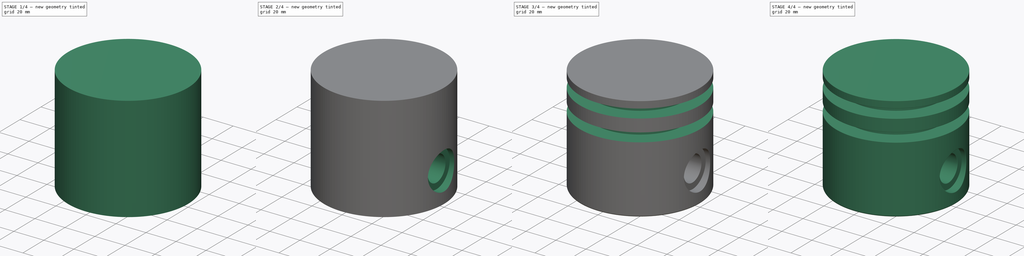
[diagram: build sequence overview — one tinted view per stage of 4, left to right]
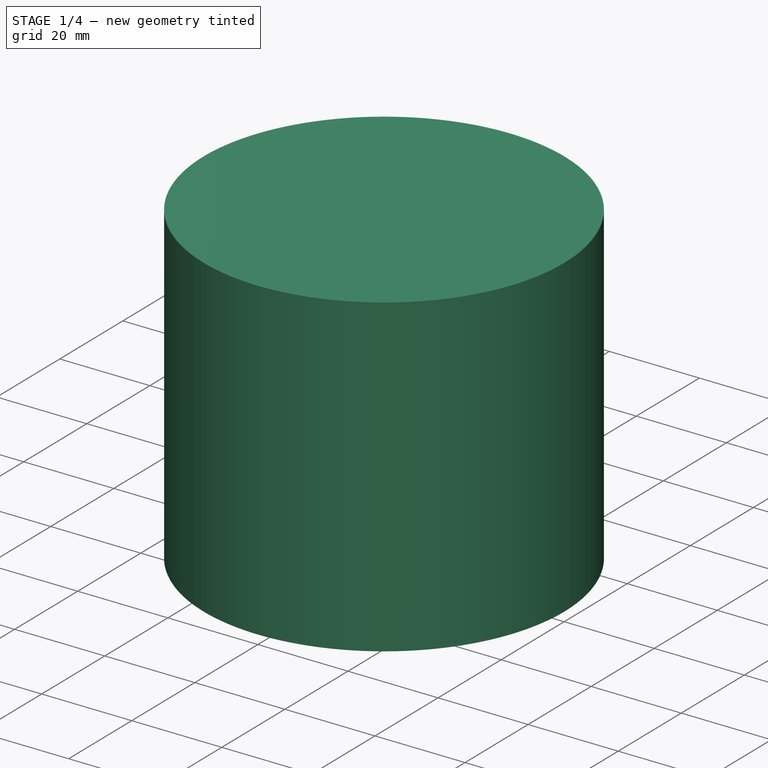
[diagram: stage 1 of 4 — iso view after this stage's code; geometry added in this stage tinted green]
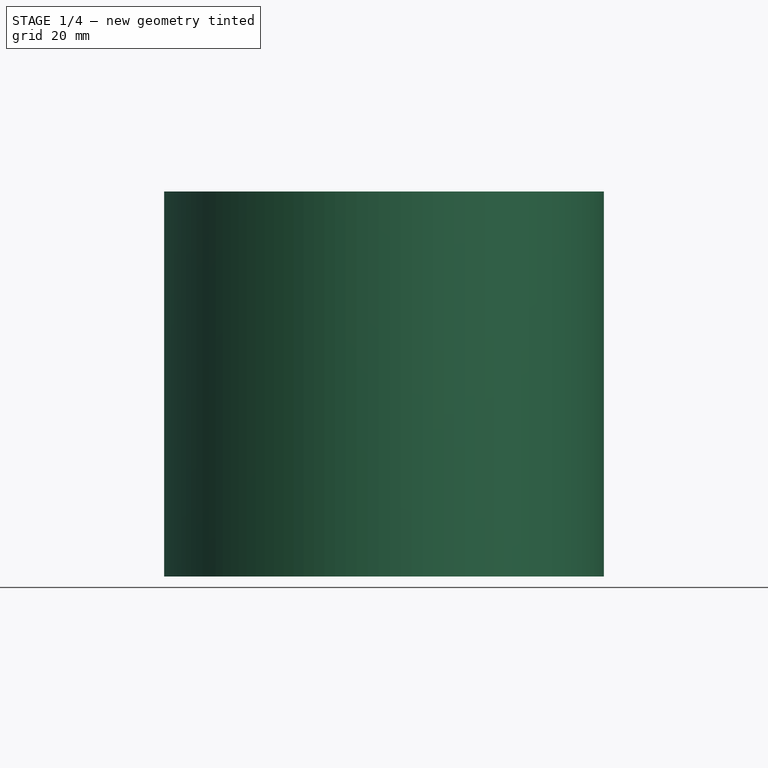
[diagram: stage 1 of 4 — front view after this stage's code; geometry added in this stage tinted green]
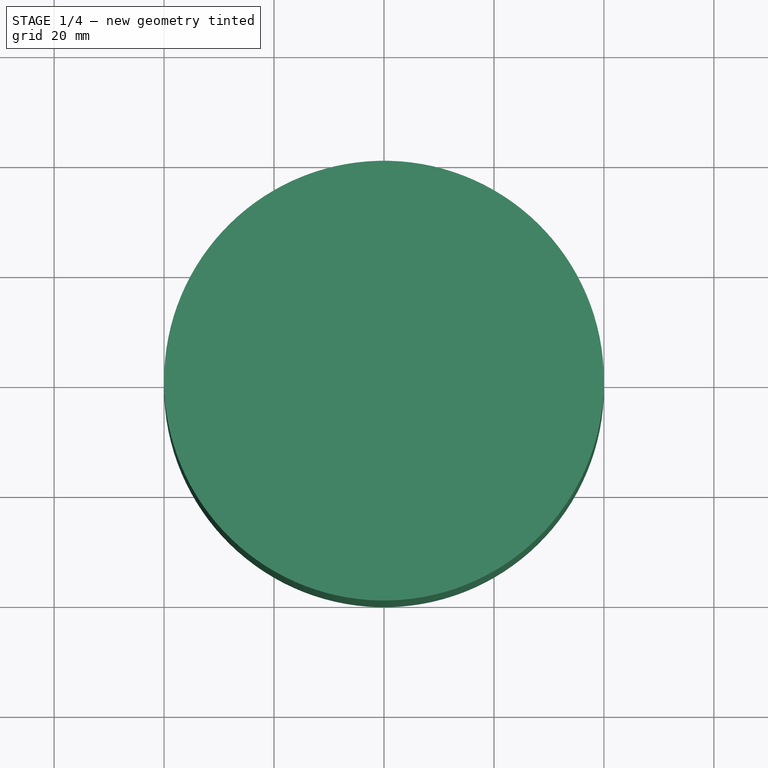
[diagram: stage 1 of 4 — top view after this stage's code; geometry added in this stage tinted green]
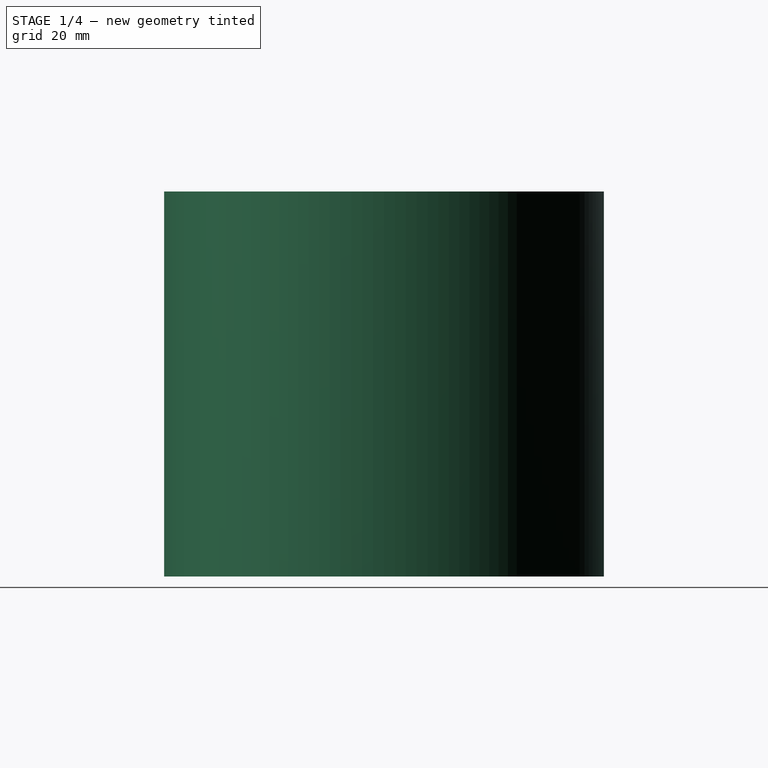
[diagram: stage 1 of 4 — right view after this stage's code; geometry added in this stage tinted green]
FCSTD DOCUMENT  (FreeCAD 0.19R24267 +148 (Git))
Label: Piston
License: All rights reserved
LicenseURL: http://en.wikipedia.org/wiki/All_rights_reserved
objects: Sketcher::SketchObject×6, PartDesign::Fillet×6, PartDesign::Pocket×3, PartDesign::Pad×2, PartDesign::Body×2, PartDesign::Revolution×1, PartDesign::Groove×1
note: 34 computed .brp shape members not serialized (recipe doc carries the construction recipe); baked Part::Feature solids carry a one-line shape summary decoded from their .brp

FEATURE [Sketcher::SketchObject] Sketch
  FullyConstrained = false
  Placement = pos=(0,0,0) rot=(1,0,0;1.5708rad)
  sketch-geometry (14):
    g0: LineSegment StartX=0 StartY=70 StartZ=0 EndX=40 EndY=70 EndZ=0
    g1: LineSegment StartX=40 StartY=70 StartZ=0 EndX=40 EndY=0 EndZ=0
    g2: LineSegment StartX=40 StartY=0 StartZ=0 EndX=25 EndY=0 EndZ=0
    g3: LineSegment StartX=25 StartY=0 StartZ=0 EndX=25 EndY=37.7172 EndZ=0
    g4: LineSegment StartX=25 StartY=37.7172 StartZ=0 EndX=0 EndY=37.7172 EndZ=0
    g5: LineSegment StartX=0 StartY=37.7172 StartZ=0 EndX=0 EndY=45.7172 EndZ=0
    g6: LineSegment StartX=0 StartY=45.7172 StartZ=0 EndX=9.7332 EndY=45.7172 EndZ=0
    g7: LineSegment StartX=9.7332 StartY=45.7172 StartZ=0 EndX=9.7332 EndY=51 EndZ=0
    g8: LineSegment StartX=9.7332 StartY=51 StartZ=0 EndX=0 EndY=51 EndZ=0
    g9: LineSegment StartX=0 StartY=51 StartZ=0 EndX=0 EndY=57 EndZ=0
    g10: LineSegment StartX=0 StartY=57 StartZ=0 EndX=9.7332 EndY=57 EndZ=0
    g11: LineSegment StartX=9.7332 StartY=57 StartZ=0 EndX=9.7332 EndY=62 EndZ=0
    g12: LineSegment StartX=9.7332 StartY=62 StartZ=0 EndX=0 EndY=62 EndZ=0
    g13: LineSegment StartX=0 StartY=62 StartZ=0 EndX=0 EndY=70 EndZ=0
  constraints (37):
    c: PointOnObject(g0,g-2)
    c: Horizontal(g0)
    c: Coincident(g0,g1)
    c: PointOnObject(g1,g-1)
    c: Vertical(g1)
    c: Coincident(g1,g2)
    c: PointOnObject(g2,g-1)
    c: Coincident(g2,g3)
    c: Vertical(g3)
    c: Coincident(g3,g4)
    c: Horizontal(g4)
    c: Coincident(g4,g5)
    c: Vertical(g5)
    c: Coincident(g5,g6)
    c: Coincident(g6,g7)
    c: Vertical(g7)
    c: Coincident(g7,g8)
    c: PointOnObject(g8,g-2)
    c: Coincident(g8,g9)
    c: PointOnObject(g9,g-2)
    c: Coincident(g9,g10)
    c: Coincident(g10,g11)
    c: Coincident(g11,g12)
    c: PointOnObject(g12,g-2)
    c: Coincident(g12,g13)
    c: Coincident(g13,g0)
    c: Vertical(g11)
    c: Horizontal(g10)
    c: Horizontal(g12)
    c: Horizontal(g8)
    c: Horizontal(g6)
    c: Vertical(g10,g7)
    c: Vertical(g8,g5)
    c: Distance(g2) = 15
    c: Distance(g0) = 40
    c: Distance(g5) = 8
    c: Distance(g13) = 8
FEATURE [Sketcher::SketchObject] Sketch001
  FullyConstrained = true
  MapMode = 5
  Placement = pos=(0,0,0) rot=(0.57735,0.57735,0.57735;2.0944rad)
  Support = -> [YZ_Plane]
  sketch-geometry (1):
    g0: Circle CenterX=0 CenterY=20 CenterZ=0 NormalX=0 NormalY=0 NormalZ=1 AngleXU=0 Radius=12.5
  constraints (3):
    c: PointOnObject(g0,g-2)
    c: Diameter(g0) = 25
    c: Distance(g0,g-1) = 20
FEATURE [PartDesign::Revolution] Revolution
  Angle = 360
  Axis = (0,9e-16,1)
  Base = (0,0,0)
  Placement = pos=(0,0,0) rot=(1,0,0;1.5708rad)
  Profile = -> Sketch
  ReferenceAxis = -> Sketch [V_Axis]
  Reversed = true
FEATURE [PartDesign::Body] Body  label="Piston head"
  Group = -> [Sketch,Sketch001,Revolution,Pocket,Sketch002,Pad,Pocket001,Sketch003,Groove,Fillet,Fillet001,Fillet002,Fillet003,Fillet004,Fillet005]
  Origin = -> Origin
  Tip = -> Fillet005
FEATURE [Sketcher::SketchObject] Sketch004
  FullyConstrained = false
  MapMode = 5
  Placement = pos=(0,0,0) rot=(0.57735,0.57735,0.57735;2.0944rad)
  Support = -> [YZ_Plane001]
  sketch-geometry (1):
    g0: Circle CenterX=0 CenterY=19.948 CenterZ=0 NormalX=0 NormalY=0 NormalZ=1 AngleXU=0 Radius=10
  constraints (2):
    c: PointOnObject(g0,g-2)
    c: Diameter(g0) = 20
FEATURE [PartDesign::Pad] Pad001
  Direction = (1,1,1)
  Length = 24
  Length2 = 100
  Midplane = true
  Placement = pos=(0,0,0) rot=(0.57735,0.57735,0.57735;2.0944rad)
  Profile = -> Sketch004
  Type = 0
FEATURE [Sketcher::SketchObject] Sketch005
  FullyConstrained = false
  MapMode = 5
  Placement = pos=(-12,5.3e-15,-4e-15) rot=(0.57735,0.57735,-0.57735;4.18879rad)
  sketch-geometry (1):
    g0: Circle CenterX=0 CenterY=-20.024 CenterZ=0 NormalX=0 NormalY=0 NormalZ=1 AngleXU=0 Radius=5
  constraints (2):
    c: PointOnObject(g0,g-2)
    c: Diameter(g0) = 10
FEATURE [PartDesign::Pocket] Pocket002
  BaseFeature = -> Pad001
  Length = 20
  Length2 = 100
  Midplane = true
  Placement = pos=(0,0,0) rot=(0.57735,0.57735,0.57735;2.0944rad)
  Profile = -> Sketch005
  Type = 0
FEATURE [PartDesign::Body] Body001  label="Connector rod"
  Group = -> [Sketch004,Pad001,Sketch005,Pocket002]
  Origin = -> Origin001
  Tip = -> Pocket002
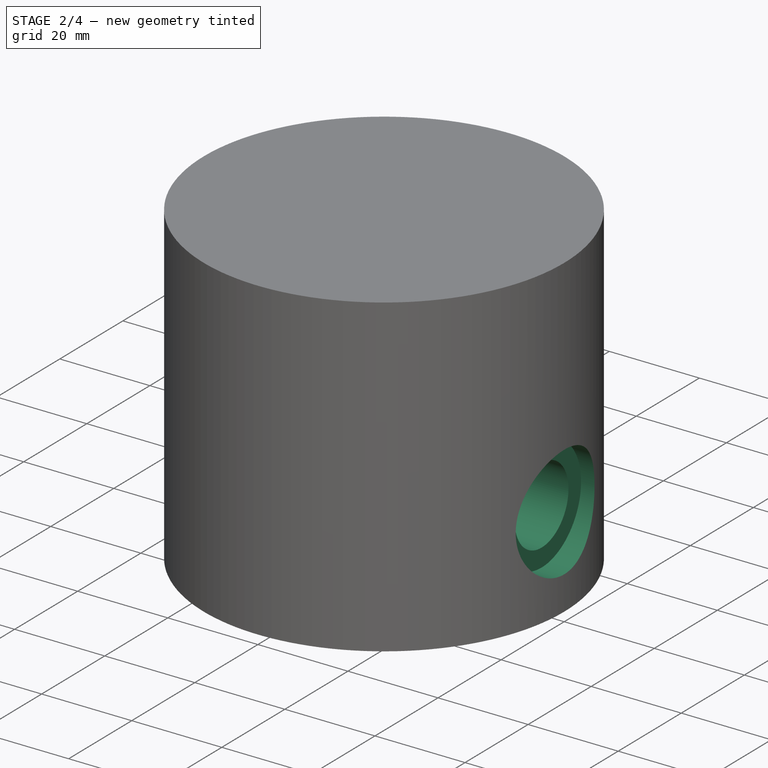
[diagram: stage 2 of 4 — iso view after this stage's code; geometry added in this stage tinted green]
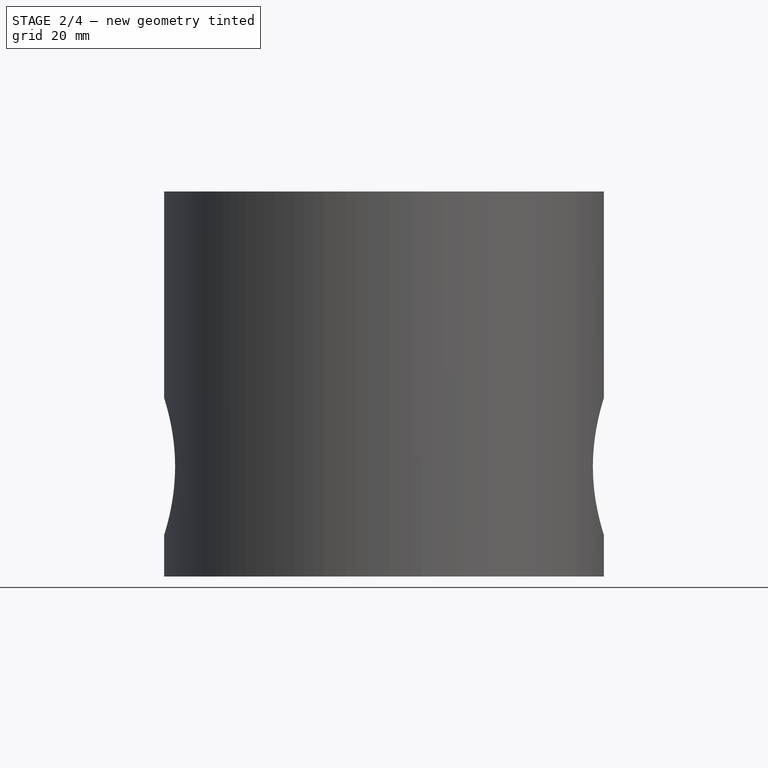
[diagram: stage 2 of 4 — front view after this stage's code; geometry added in this stage tinted green]
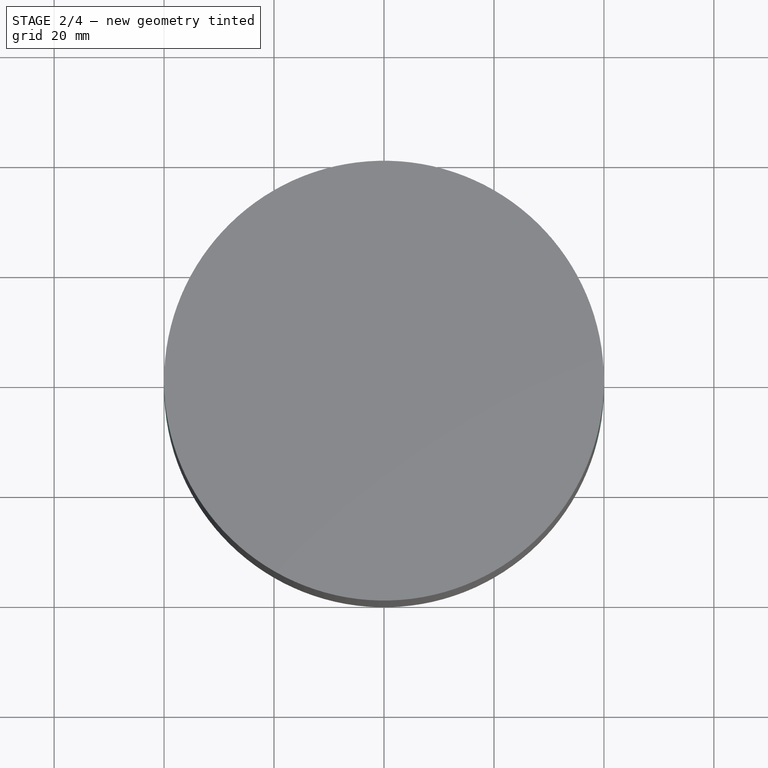
[diagram: stage 2 of 4 — top view after this stage's code; geometry added in this stage tinted green]
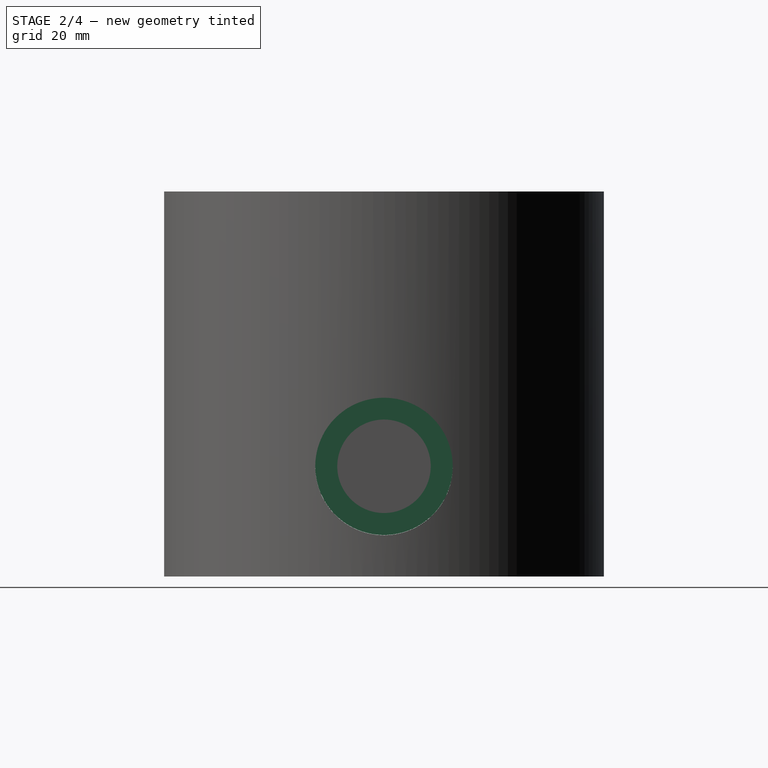
[diagram: stage 2 of 4 — right view after this stage's code; geometry added in this stage tinted green]
FEATURE [PartDesign::Pocket] Pocket
  BaseFeature = -> Revolution
  Length = 80
  Length2 = 100
  Midplane = true
  Placement = pos=(0,0,0) rot=(1,0,0;1.5708rad)
  Profile = -> Sketch001
  Type = 0
FEATURE [Sketcher::SketchObject] Sketch002
  FullyConstrained = false
  MapMode = 5
  Placement = pos=(0,0,0) rot=(0.57735,0.57735,0.57735;2.0944rad)
  Support = -> [YZ_Plane]
  sketch-geometry (2):
    g0: Circle CenterX=0 CenterY=20.0358 CenterZ=0 NormalX=0 NormalY=0 NormalZ=1 AngleXU=0 Radius=12.5
    g1: Circle CenterX=0 CenterY=20.0358 CenterZ=0 NormalX=0 NormalY=0 NormalZ=1 AngleXU=0 Radius=8.5
  constraints (4):
    c: PointOnObject(g0,g-2)
    c: Diameter(g0) = 25
    c: Coincident(g1,g0)
    c: Diameter(g1) = 17
FEATURE [PartDesign::Pad] Pad
  BaseFeature = -> Pocket
  Direction = (1,1,1)
  Length = 70
  Length2 = 100
  Midplane = true
  Placement = pos=(0,0,0) rot=(1,0,0;1.5708rad)
  Profile = -> Sketch002
  Type = 0
FEATURE [PartDesign::Pocket] Pocket001
  BaseFeature = -> Pad
  Length = 24
  Length2 = 100
  Midplane = true
  Placement = pos=(0,0,0) rot=(1,0,0;1.5708rad)
  Profile = -> Sketch002
  Type = 0
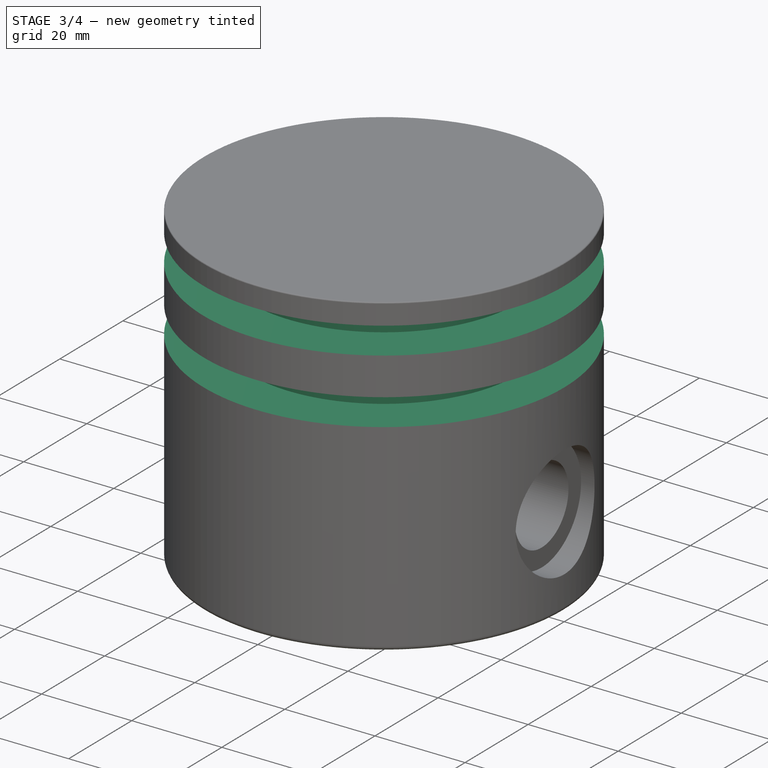
[diagram: stage 3 of 4 — iso view after this stage's code; geometry added in this stage tinted green]
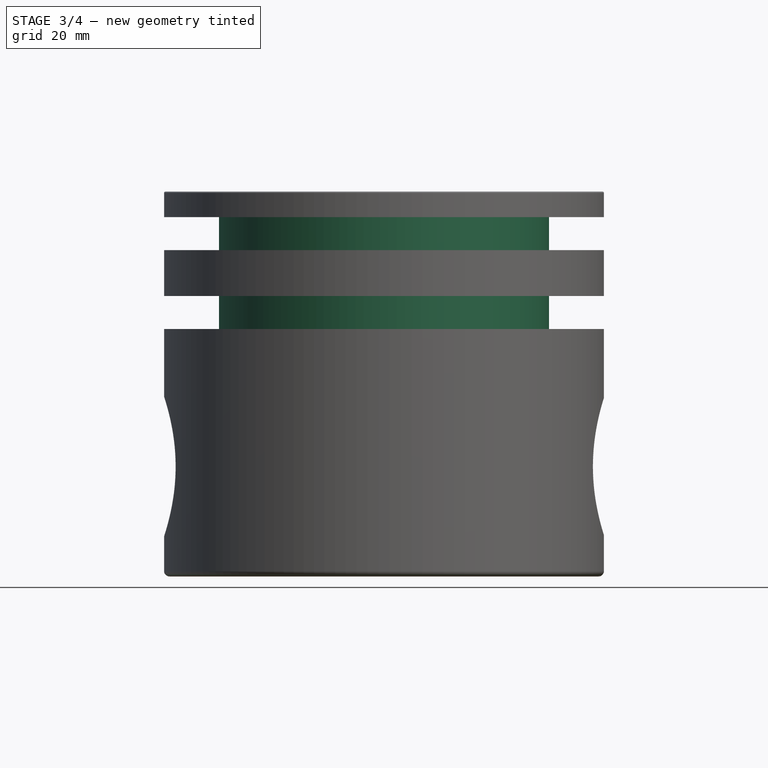
[diagram: stage 3 of 4 — front view after this stage's code; geometry added in this stage tinted green]
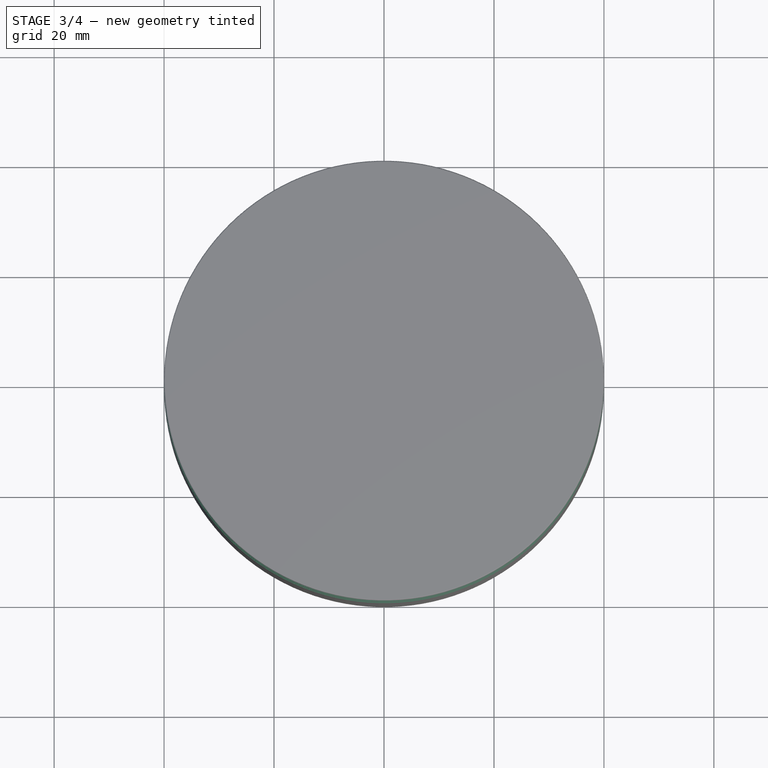
[diagram: stage 3 of 4 — top view after this stage's code; geometry added in this stage tinted green]
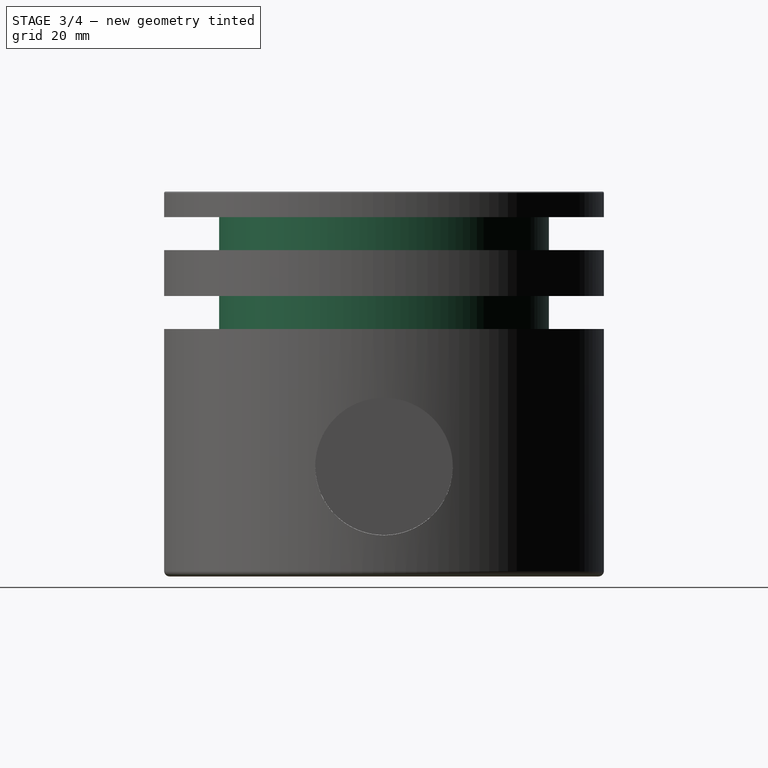
[diagram: stage 3 of 4 — right view after this stage's code; geometry added in this stage tinted green]
FEATURE [Sketcher::SketchObject] Sketch003
  FullyConstrained = false
  MapMode = 5
  Placement = pos=(0,0,0) rot=(1,0,0;1.5708rad)
  Support = -> [XZ_Plane]
  sketch-geometry (8):
    g0: LineSegment StartX=30 StartY=65.3545 StartZ=0 EndX=45 EndY=65.3545 EndZ=0
    g1: LineSegment StartX=45 StartY=65.3545 StartZ=0 EndX=45 EndY=59.3545 EndZ=0
    g2: LineSegment StartX=45 StartY=59.3545 StartZ=0 EndX=30 EndY=59.3545 EndZ=0
    g3: LineSegment StartX=30 StartY=59.3545 StartZ=0 EndX=30 EndY=65.3545 EndZ=0
    g4: LineSegment StartX=30 StartY=51 StartZ=0 EndX=45 EndY=51 EndZ=0
    g5: LineSegment StartX=45 StartY=51 StartZ=0 EndX=45 EndY=45 EndZ=0
    g6: LineSegment StartX=45 StartY=45 StartZ=0 EndX=30 EndY=45 EndZ=0
    g7: LineSegment StartX=30 StartY=45 StartZ=0 EndX=30 EndY=51 EndZ=0
  constraints (23):
    c: Coincident(g0,g1)
    c: Coincident(g1,g2)
    c: Coincident(g2,g3)
    c: Coincident(g3,g0)
    c: Horizontal(g0)
    c: Horizontal(g2)
    c: Vertical(g1)
    c: Vertical(g3)
    c: Distance(g3) = 6
    c: Coincident(g4,g5)
    c: Coincident(g5,g6)
    c: Coincident(g6,g7)
    c: Coincident(g7,g4)
    c: Horizontal(g4)
    c: Horizontal(g6)
    c: Vertical(g5)
    c: Vertical(g7)
    c: Vertical(g2,g4)
    c: Vertical(g4,g1)
    c: Distance(g7) = 6
    c: DistanceY(g-1,g6) = 45
    c: DistanceX(g-1,g0) = 30
    c: Distance(g0) = 15
FEATURE [PartDesign::Groove] Groove
  Angle = 360
  Axis = (0,2e-16,1)
  Base = (0,0,0)
  BaseFeature = -> Pocket001
  Placement = pos=(0,0,0) rot=(1,0,0;1.5708rad)
  Profile = -> Sketch003
  ReferenceAxis = -> Sketch003 [V_Axis]
FEATURE [PartDesign::Fillet] Fillet
  Base = -> Groove [Edge30,Edge17]
  BaseFeature = -> Groove
  Placement = pos=(0,0,0) rot=(1,0,0;1.5708rad)
  Radius = 1
  SupportTransform = false
FEATURE [PartDesign::Fillet] Fillet001
  Base = -> Fillet [Edge59]
  BaseFeature = -> Fillet
  Placement = pos=(0,0,0) rot=(1,0,0;1.5708rad)
  Radius = 0.25
  SupportTransform = false
FEATURE [PartDesign::Fillet] Fillet002
  Base = -> Fillet001 [Edge24,Edge22,Vertex16,Vertex17,Edge23,Vertex15]
  BaseFeature = -> Fillet001
  Placement = pos=(0,0,0) rot=(1,0,0;1.5708rad)
  Radius = 0.25
  SupportTransform = false
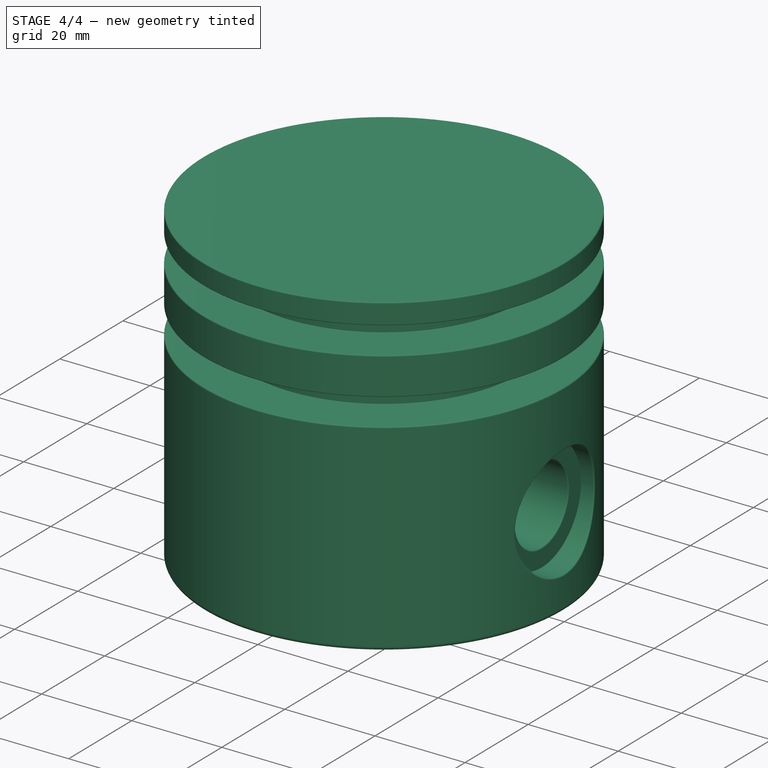
[diagram: stage 4 of 4 — iso view after this stage's code; geometry added in this stage tinted green]
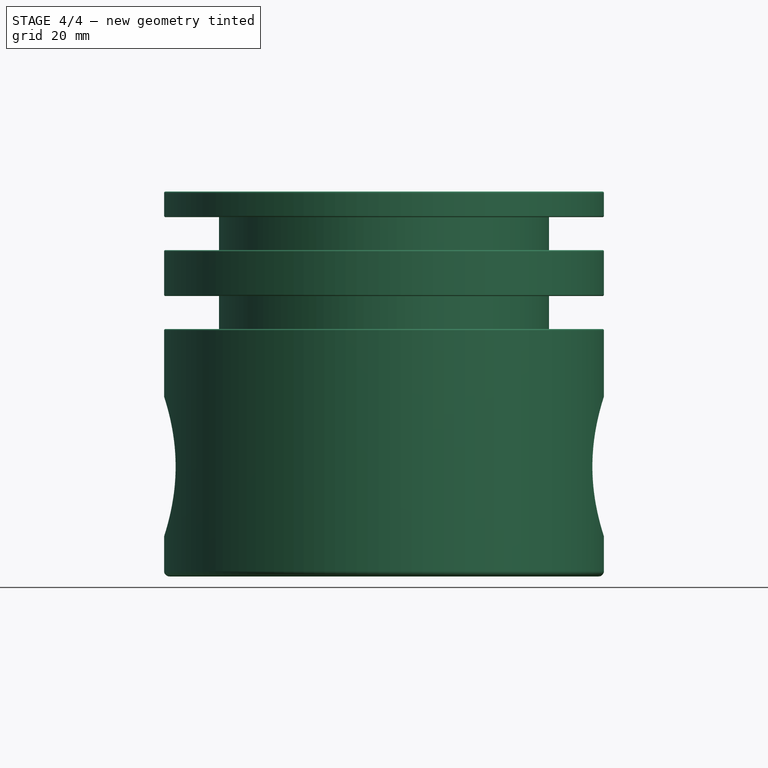
[diagram: stage 4 of 4 — front view after this stage's code; geometry added in this stage tinted green]
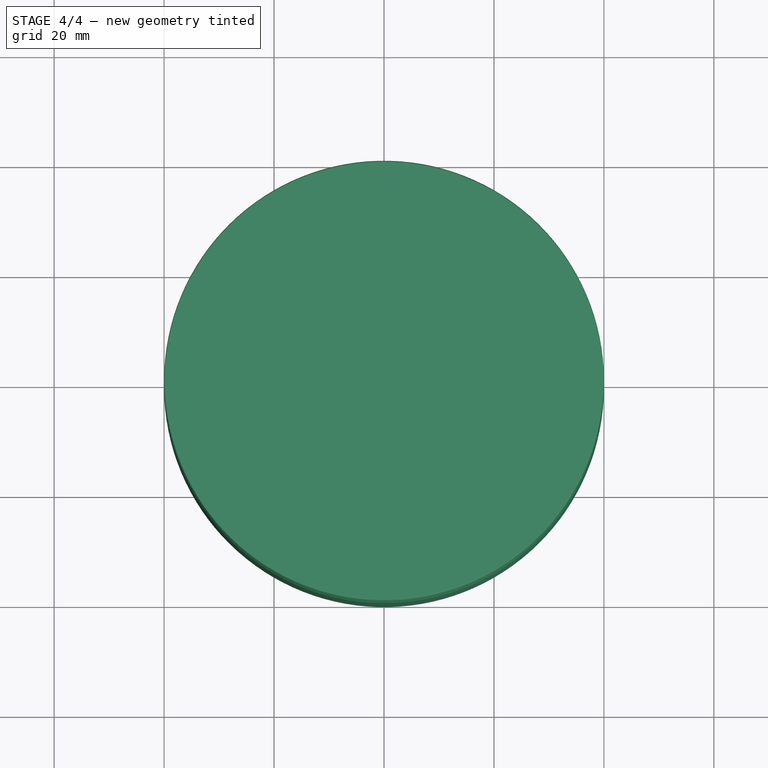
[diagram: stage 4 of 4 — top view after this stage's code; geometry added in this stage tinted green]
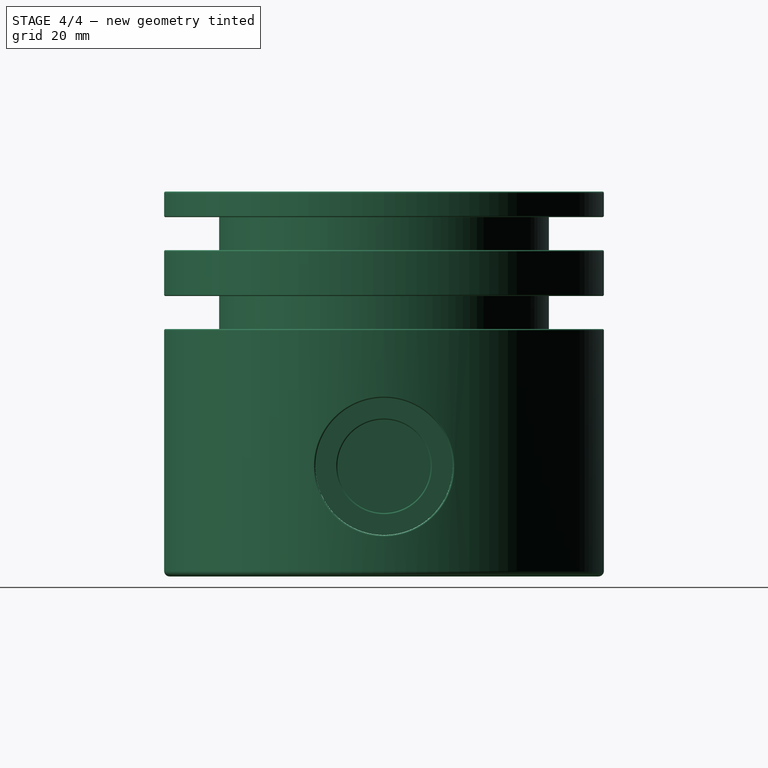
[diagram: stage 4 of 4 — right view after this stage's code; geometry added in this stage tinted green]
FEATURE [PartDesign::Fillet] Fillet003
  Base = -> Fillet002 [Edge46]
  BaseFeature = -> Fillet002
  Placement = pos=(0,0,0) rot=(1,0,0;1.5708rad)
  Radius = 0.25
  SupportTransform = false
FEATURE [PartDesign::Fillet] Fillet004
  Base = -> Fillet003 [Edge32,Vertex23,Edge36,Edge34,Vertex22,Edge49,Vertex32]
  BaseFeature = -> Fillet003
  Placement = pos=(0,0,0) rot=(1,0,0;1.5708rad)
  Radius = 0.25
  SupportTransform = false
FEATURE [PartDesign::Fillet] Fillet005
  Base = -> Fillet004 [Edge50,Edge5,Edge58,Edge68]
  BaseFeature = -> Fillet004
  Placement = pos=(0,0,0) rot=(1,0,0;1.5708rad)
  Radius = 0.25
  SupportTransform = false
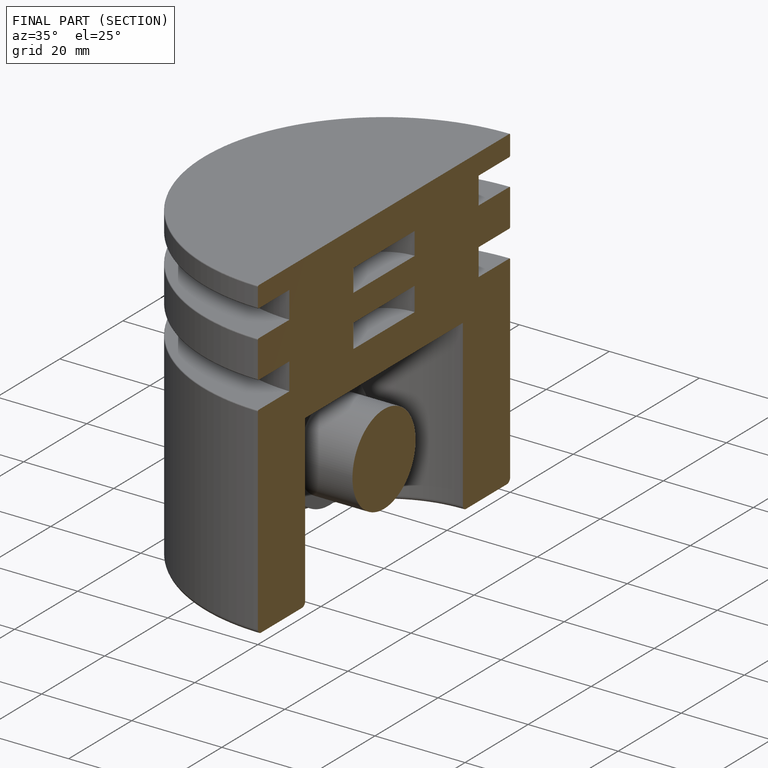
[diagram: finished part — half-section view (interior)]
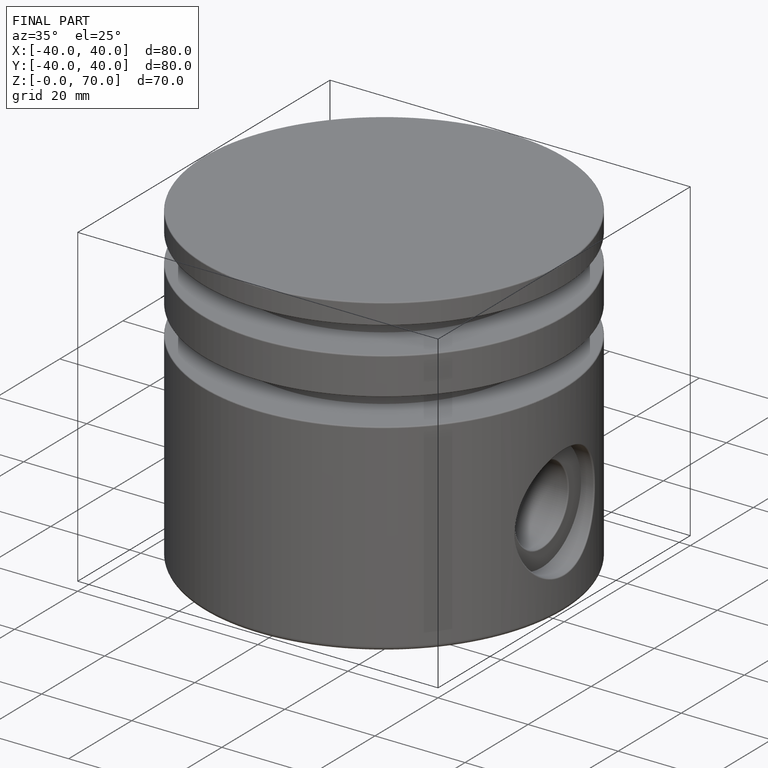
[diagram: finished part — iso view with bounding-box wireframe]
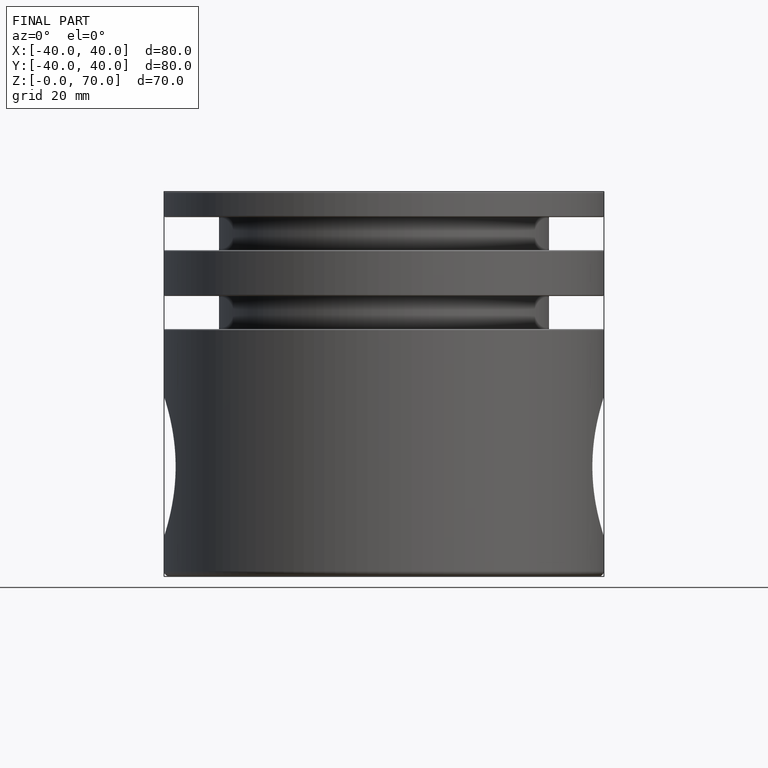
[diagram: finished part — front view with bounding-box wireframe]
